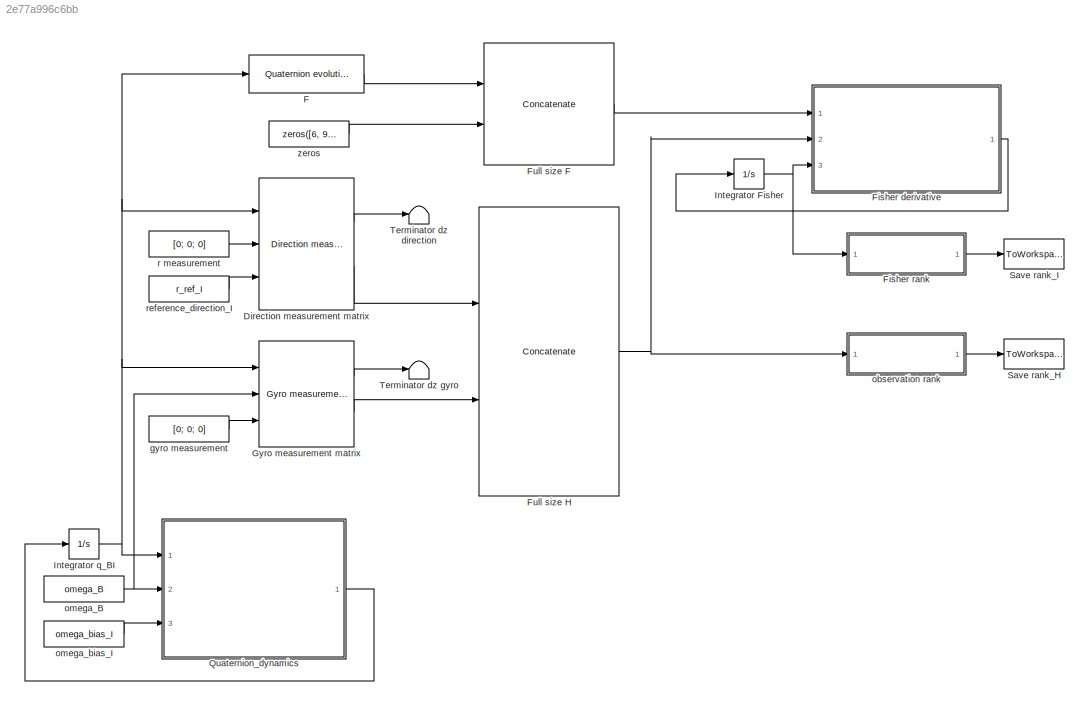
MODEL slx_2e77a996c6bb
KIND model
BLOCK [Reference] Direction measurement matrix  REF=lib_gyro_fusion/Direction measurement matrix  (lib defined in slx_a4b6311b9d1d)
  Ports = [3, 2]
  SourceBlock = lib_gyro_fusion/Direction measurement matrix
  SourceType = SubSystem
BLOCK [Reference] F  REF=lib_gyro_fusion/Kalman predictor/Quaternion evolution matrix  (lib defined in slx_a4b6311b9d1d)
(continuous time)
  Ports = [1, 1]
  SourceBlock = lib_gyro_fusion/Kalman predictor/Quaternion evolution matrix\n(continuous time)
  SourceType = SubSystem
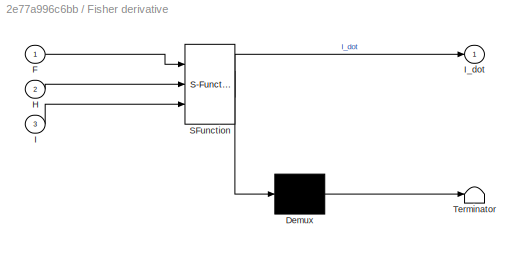
BLOCK [SubSystem] Fisher derivative
  ErrorFcn = Stateflow.Translate.translate
  PermitHierarchicalResolution = ExplicitOnly
  Ports = [3, 1]
  RequestExecContextInheritance = off
  SFBlockType = MATLAB Function
  TreatAsAtomicUnit = on
BLOCK [Demux] Fisher derivative/ Demux 
  Outputs = 1
  Ports = [1, 1]
BLOCK [S-Function] Fisher derivative/ SFunction 
  EnableBusSupport = on
  FunctionName = sf_sfun
  PortCounts = [3 2]
  Ports = [3, 2]
  Tag = Stateflow S-Function state_observability 1
BLOCK [Terminator] Fisher derivative/ Terminator 
BLOCK [Inport] Fisher derivative/F
  IconDisplay = Port number
BLOCK [Inport] Fisher derivative/H
  IconDisplay = Port number
  Port = 2
BLOCK [Inport] Fisher derivative/I
  IconDisplay = Port number
  Port = 3
BLOCK [Outport] Fisher derivative/I_dot
  IconDisplay = Port number
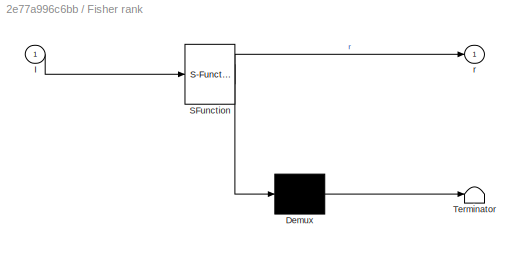
BLOCK [SubSystem] Fisher rank
  ErrorFcn = Stateflow.Translate.translate
  PermitHierarchicalResolution = ExplicitOnly
  Ports = [1, 1]
  RequestExecContextInheritance = off
  SFBlockType = MATLAB Function
  TreatAsAtomicUnit = on
BLOCK [Demux] Fisher rank/ Demux 
  Outputs = 1
  Ports = [1, 1]
BLOCK [S-Function] Fisher rank/ SFunction 
  EnableBusSupport = on
  FunctionName = sf_sfun
  PortCounts = [1 2]
  Ports = [1, 2]
  Tag = Stateflow S-Function state_observability 3
BLOCK [Terminator] Fisher rank/ Terminator 
BLOCK [Inport] Fisher rank/I
  IconDisplay = Port number
BLOCK [Outport] Fisher rank/r
  IconDisplay = Port number
BLOCK [Concatenate] Full size F
  Mode = Multidimensional array
  Ports = [2, 1]
BLOCK [Concatenate] Full size H
  Mode = Multidimensional array
  Ports = [2, 1]
BLOCK [Reference] Gyro measurement matrix  REF=lib_gyro_fusion/Gyro measurement matrix  (lib defined in slx_a4b6311b9d1d)
  Ports = [3, 2]
  SourceBlock = lib_gyro_fusion/Gyro measurement matrix
  SourceType = SubSystem
BLOCK [Integrator] Integrator Fisher
  InitialCondition = zeros(9)
  Ports = [1, 1]
BLOCK [Integrator] Integrator q_BI
  InitialCondition = q_init
  Ports = [1, 1]
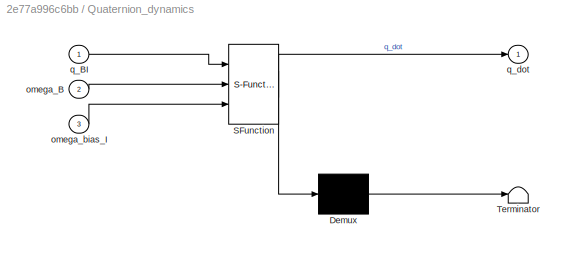
BLOCK [SubSystem] Quaternion_dynamics
  ErrorFcn = Stateflow.Translate.translate
  PermitHierarchicalResolution = ExplicitOnly
  Ports = [3, 1]
  RequestExecContextInheritance = off
  SFBlockType = MATLAB Function
  TreatAsAtomicUnit = on
BLOCK [Demux] Quaternion_dynamics/ Demux 
  Outputs = 1
  Ports = [1, 1]
BLOCK [S-Function] Quaternion_dynamics/ SFunction 
  EnableBusSupport = on
  FunctionName = sf_sfun
  PortCounts = [3 2]
  Ports = [3, 2]
  Tag = Stateflow S-Function state_observability 11
BLOCK [Terminator] Quaternion_dynamics/ Terminator 
BLOCK [Inport] Quaternion_dynamics/omega_B
  IconDisplay = Port number
  Port = 2
BLOCK [Inport] Quaternion_dynamics/omega_bias_I
  IconDisplay = Port number
  Port = 3
BLOCK [Inport] Quaternion_dynamics/q_BI
  IconDisplay = Port number
BLOCK [Outport] Quaternion_dynamics/q_dot
  IconDisplay = Port number
BLOCK [ToWorkspace] Save rank_H
  FixptAsFi = on
  MaxDataPoints = inf
  Ports = [1]
  SampleTime = -1
  Save2DSignal = 3-D array (concatenate along third dimension)
  SaveFormat = Timeseries
  VariableName = rank_H
BLOCK [ToWorkspace] Save rank_I
  FixptAsFi = on
  MaxDataPoints = inf
  Ports = [1]
  SampleTime = -1
  Save2DSignal = 3-D array (concatenate along third dimension)
  SaveFormat = Timeseries
  VariableName = rank_I
BLOCK [Terminator] Terminator dz direction
BLOCK [Terminator] Terminator dz gyro
BLOCK [Constant] gyro measurement
  Value = [0; 0; 0]
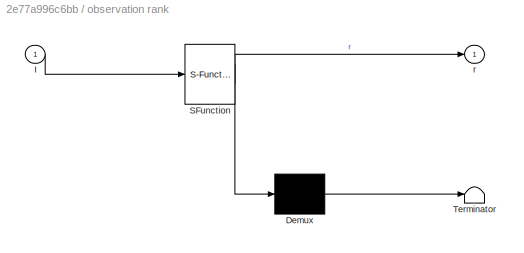
BLOCK [SubSystem] observation rank
  ErrorFcn = Stateflow.Translate.translate
  PermitHierarchicalResolution = ExplicitOnly
  Ports = [1, 1]
  RequestExecContextInheritance = off
  SFBlockType = MATLAB Function
  TreatAsAtomicUnit = on
BLOCK [Demux] observation rank/ Demux 
  Outputs = 1
  Ports = [1, 1]
BLOCK [S-Function] observation rank/ SFunction 
  EnableBusSupport = on
  FunctionName = sf_sfun
  PortCounts = [1 2]
  Ports = [1, 2]
  Tag = Stateflow S-Function state_observability 2
BLOCK [Terminator] observation rank/ Terminator 
BLOCK [Inport] observation rank/I
  IconDisplay = Port number
BLOCK [Outport] observation rank/r
  IconDisplay = Port number
BLOCK [Constant] omega_B
  Value = omega_B
BLOCK [Constant] omega_bias_I
  Value = omega_bias_I
BLOCK [Constant] r measurement
  Value = [0; 0; 0]
BLOCK [Constant] reference_direction_I
  Value = r_ref_I
BLOCK [Constant] zeros
  Value = zeros([6, 9])
LINE Direction measurement matrix:1 -> Terminator dz direction:1
LINE Direction measurement matrix:2 -> Full size H:1
LINE F:1 -> Full size F:1
LINE Fisher derivative:1 -> Integrator Fisher:1
LINE Fisher rank:1 -> Save rank_I:1
LINE Full size F:1 -> Fisher derivative:1
NET Full size H:1 -> Fisher derivative:2, observation rank:1
LINE Gyro measurement matrix:1 -> Terminator dz gyro:1
LINE Gyro measurement matrix:2 -> Full size H:2
NET Integrator Fisher:1 -> Fisher derivative:3, Fisher rank:1
NET Integrator q_BI:1 -> Direction measurement matrix:1, F:1, Gyro measurement matrix:1, Quaternion_dynamics:1
LINE Quaternion_dynamics:1 -> Integrator q_BI:1
LINE gyro measurement:1 -> Gyro measurement matrix:3
LINE observation rank:1 -> Save rank_H:1
NET omega_B:1 -> Gyro measurement matrix:2, Quaternion_dynamics:2
LINE omega_bias_I:1 -> Quaternion_dynamics:3
LINE r measurement:1 -> Direction measurement matrix:2
LINE reference_direction_I:1 -> Direction measurement matrix:3
LINE zeros:1 -> Full size F:2
note: NET lines group one-source signal fan-out (src -> all destinations, sorted); 1:1 wires keep LINE
